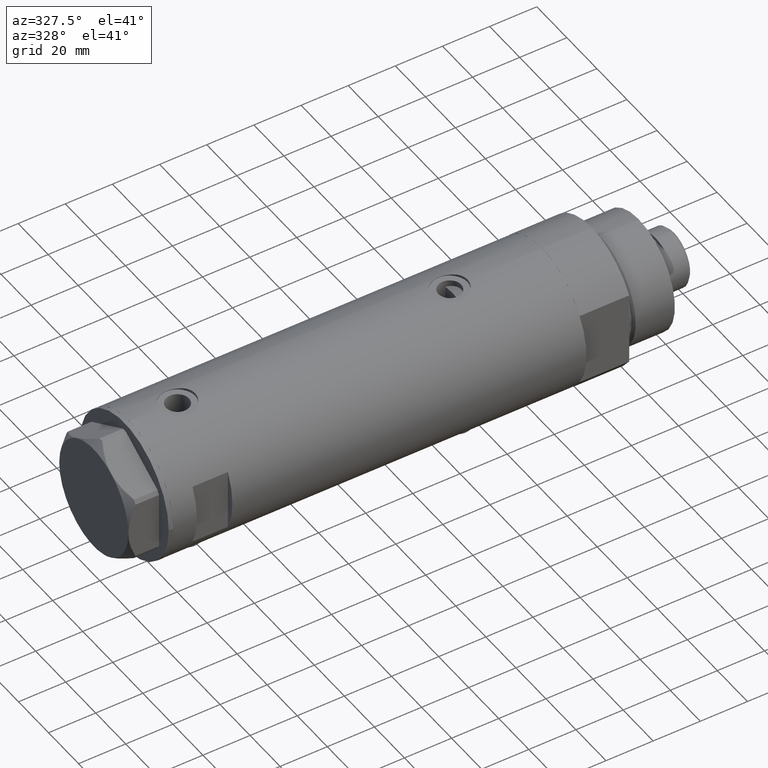
[diagram: clean part render]
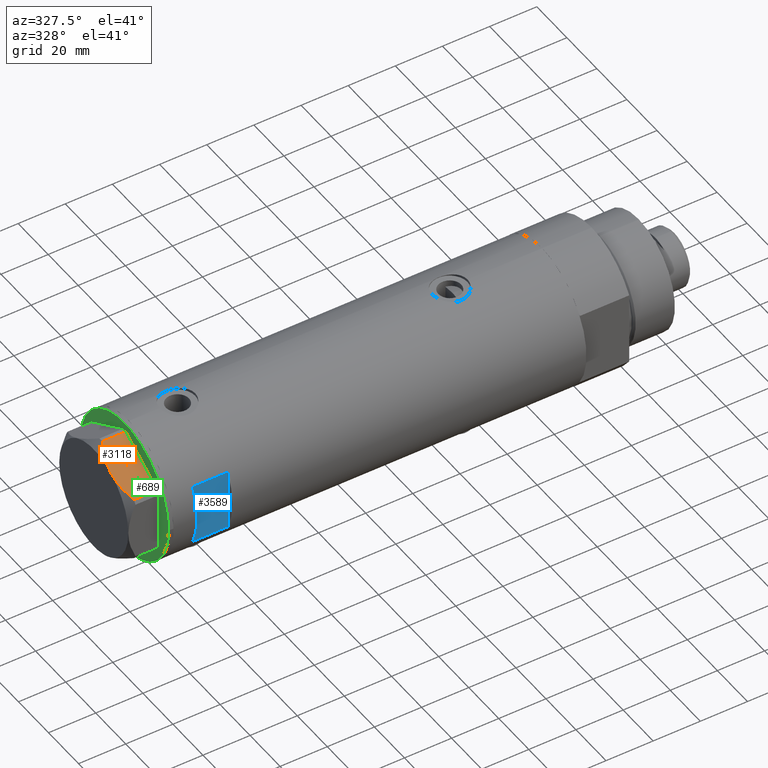
[diagram: same view with three faces highlighted in distinct colors, each labeled with its STEP entity id]
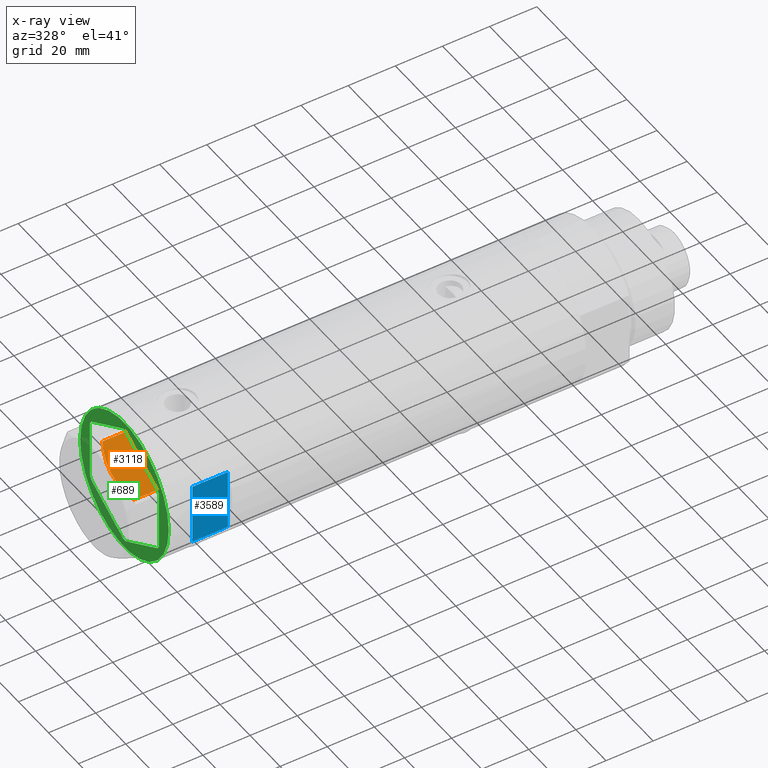
[diagram: x-ray of the same camera — body ghosted, the three highlighted faces saturated]
A machine part, auxiliary view with three faces highlighted in distinct colors.
The next image is the same camera in x-ray (body ghosted, the three faces saturated) — at least one of them is partly hidden behind the body in this view.
Their STEP definitions:

[orange] entity #3118 — the highlighted planar face has unit normal (-0, 0.5, -0.866).
#182 = CARTESIAN_POINT ( 'NONE',  ( -1.799196345396643304, -25.51934588838291162, 10.43131750950939640 ) ) ;
#201 = CARTESIAN_POINT ( 'NONE',  ( -9.678244919010003500, -20.97037507344916563, 13.00000000000009237 ) ) ;
#215 = CARTESIAN_POINT ( 'NONE',  ( -16.05322244309625290, -17.28978008384019915, 12.42689993760378542 ) ) ;
#270 = CARTESIAN_POINT ( 'NONE',  ( -2.640413878806567638, -25.03366871902166935, 10.84420102443839262 ) ) ;
#316 = CARTESIAN_POINT ( 'NONE',  ( -22.03005154776132102, -13.83905619136147536, 13.00000000000000000 ) ) ;
#323 = CARTESIAN_POINT ( 'NONE',  ( -22.99999999999990408, -13.27905619136147841, 0.000000000000000000 ) ) ;
#343 = ORIENTED_EDGE ( 'NONE', *, *, #1507, .T. ) ;
#440 = VERTEX_POINT ( 'NONE', #2697 ) ;
#441 = DIRECTION ( 'NONE',  ( 0.000000000000000000, 0.000000000000000000, 1.000000000000000000 ) ) ;
#642 = CARTESIAN_POINT ( 'NONE',  ( -4.357207709415887642, -24.04247733877630466, 11.57055225522972819 ) ) ;
#657 = EDGE_CURVE ( 'NONE', #2319, #4105, #1251, .T. ) ;
#894 = VECTOR ( 'NONE', #1303, 1000.000000000000000 ) ;
#933 = EDGE_CURVE ( 'NONE', #2319, #1058, #2778, .T. ) ;
#977 = CARTESIAN_POINT ( 'NONE',  ( -0.9699484522383853280, -25.99811238272275205, 9.983800287807632401 ) ) ;
#1009 = CARTESIAN_POINT ( 'NONE',  ( -13.80210138309694479, -18.58946543380922378, 12.85271263895580418 ) ) ;
#1027 = EDGE_LOOP ( 'NONE', ( #4180, #4198, #1031, #343, #1066 ) ) ;
#1031 = ORIENTED_EDGE ( 'NONE', *, *, #1381, .T. ) ;
#1058 = VERTEX_POINT ( 'NONE', #2910 ) ;
#1066 = ORIENTED_EDGE ( 'NONE', *, *, #3388, .F. ) ;
#1238 = CARTESIAN_POINT ( 'NONE',  ( -18.67981377008999644, -15.77331687414923422, 11.62937486882610827 ) ) ;
#1251 = LINE ( 'NONE', #316, #894 ) ;
#1303 = DIRECTION ( 'NONE',  ( -0.000000000000000000, 0.000000000000000000, -1.000000000000000000 ) ) ;
#1320 = CARTESIAN_POINT ( 'NONE',  ( -5.671686373602661035, -23.28356272816404271, 12.04068176582933702 ) ) ;
#1358 = CARTESIAN_POINT ( 'NONE',  ( -15.16323225988328893, -17.80361615569431777, 12.63731396715695077 ) ) ;
#1381 = EDGE_CURVE ( 'NONE', #4105, #440, #2385, .T. ) ;
#1507 = EDGE_CURVE ( 'NONE', #440, #3889, #3013, .T. ) ;
#1586 = CARTESIAN_POINT ( 'NONE',  ( -7.884645426989515649, -22.00591022298554833, 12.70765172847701052 ) ) ;
#1663 = DIRECTION ( 'NONE',  ( 0.4999999999999950040, 0.8660254037844415942, -0.000000000000000000 ) ) ;
#1687 = DIRECTION ( 'NONE',  ( -0.8660254037844415942, 0.4999999999999950040, 0.000000000000000000 ) ) ;
#1714 = FACE_OUTER_BOUND ( 'NONE', #1027, .T. ) ;
#1992 = DIRECTION ( 'NONE',  ( 0.8660254037844415942, -0.4999999999999950595, 0.000000000000000000 ) ) ;
#2269 = VECTOR ( 'NONE', #1992, 1000.000000000000000 ) ;
#2319 = VERTEX_POINT ( 'NONE', #2593 ) ;
#2385 = LINE ( 'NONE', #323, #2269 ) ;
#2502 = CARTESIAN_POINT ( 'NONE',  ( -11.49999999999990585, -19.91858428704219364, 13.00000000000000000 ) ) ;
#2593 = CARTESIAN_POINT ( 'NONE',  ( -22.03005154776146313, -13.83905619136139364, 9.983800287807548912 ) ) ;
#2633 = CARTESIAN_POINT ( 'NONE',  ( -22.03005154776146313, -13.83905619136139364, 9.983800287807548912 ) ) ;
#2697 = CARTESIAN_POINT ( 'NONE',  ( -0.9699484522383873264, -25.99811238272275205, 0.000000000000000000 ) ) ;
#2778 = B_SPLINE_CURVE_WITH_KNOTS ( 'NONE', 3,
 ( #2633, #3705, #1238, #215, #1358, #1009, #2890, #3526, #4259, #2502 ),
 .UNSPECIFIED., .F., .F.,
 ( 4, 2, 2, 2, 4 ),
 ( 0.001228959670438515206, 0.007497079744270818830, 0.01063113978118697053, 0.01219816979964504639, 0.01376519981810312224 ),
 .UNSPECIFIED. ) ;
#2816 = CARTESIAN_POINT ( 'NONE',  ( -22.03005154776132102, -13.83905619136147536, 0.000000000000000000 ) ) ;
#2856 = AXIS2_PLACEMENT_3D ( 'NONE', #3386, #1663, #1687 ) ;
#2890 = CARTESIAN_POINT ( 'NONE',  ( -13.34348161667001698, -18.85424967941148822, 12.90784227772843806 ) ) ;
#2910 = CARTESIAN_POINT ( 'NONE',  ( -11.49999999999990585, -19.91858428704219364, 13.00000000000000000 ) ) ;
#2943 = CARTESIAN_POINT ( 'NONE',  ( -5.229981517797923196, -23.53858114556527781, 11.89212886775844602 ) ) ;
#3013 = LINE ( 'NONE', #4391, #3065 ) ;
#3065 = VECTOR ( 'NONE', #441, 1000.000000000000000 ) ;
#3118 = ADVANCED_FACE ( 'NONE', ( #1714 ), #3737, .F. ) ;
#3386 = CARTESIAN_POINT ( 'NONE',  ( -22.99999999999990408, -13.27905619136147841, 13.00000000000000000 ) ) ;
#3388 = EDGE_CURVE ( 'NONE', #1058, #3889, #3749, .T. ) ;
#3511 = CARTESIAN_POINT ( 'NONE',  ( -0.9699484522383853280, -25.99811238272275205, 9.983800287807632401 ) ) ;
#3526 = CARTESIAN_POINT ( 'NONE',  ( -12.41906678023023325, -19.38796083407287085, 12.98168640760950865 ) ) ;
#3705 = CARTESIAN_POINT ( 'NONE',  ( -20.37350567916426058, -14.79546339452093662, 10.87778242614345992 ) ) ;
#3716 = CARTESIAN_POINT ( 'NONE',  ( -11.49999999999990585, -19.91858428704219364, 13.00000000000000000 ) ) ;
#3737 = PLANE ( 'NONE',  #2856 ) ;
#3749 = B_SPLINE_CURVE_WITH_KNOTS ( 'NONE', 3,
 ( #3716, #201, #1586, #1320, #2943, #642, #4358, #270, #182, #977 ),
 .UNSPECIFIED., .F., .F.,
 ( 4, 2, 2, 2, 4 ),
 ( 0.01376519981810312224, 0.01998941321701588891, 0.02154546656674407451, 0.02310151991647226705, 0.02621362661592864171 ),
 .UNSPECIFIED. ) ;
#3889 = VERTEX_POINT ( 'NONE', #3511 ) ;
#4105 = VERTEX_POINT ( 'NONE', #2816 ) ;
#4180 = ORIENTED_EDGE ( 'NONE', *, *, #933, .F. ) ;
#4198 = ORIENTED_EDGE ( 'NONE', *, *, #657, .T. ) ;
#4259 = CARTESIAN_POINT ( 'NONE',  ( -11.95865151389046588, -19.65378171203314395, 13.00000000000009948 ) ) ;
#4358 = CARTESIAN_POINT ( 'NONE',  ( -3.925137811029895563, -24.29193301091818213, 11.39727285399141365 ) ) ;
#4391 = CARTESIAN_POINT ( 'NONE',  ( -0.9699484522383907681, -25.99811238272274494, 13.00000000000000000 ) ) ;

[blue] entity #3589 — the highlighted planar face has unit normal (-0, 1, 0).
#51 = EDGE_CURVE ( 'NONE', #3765, #1134, #477, .T. ) ;
#114 = AXIS2_PLACEMENT_3D ( 'NONE', #3574, #2216, #4285 ) ;
#235 = VECTOR ( 'NONE', #2536, 1000.000000000000000 ) ;
#242 = EDGE_CURVE ( 'NONE', #4257, #3765, #1689, .T. ) ;
#361 = EDGE_LOOP ( 'NONE', ( #4330, #372, #1617, #3370 ) ) ;
#372 = ORIENTED_EDGE ( 'NONE', *, *, #242, .T. ) ;
#477 = LINE ( 'NONE', #2517, #235 ) ;
#573 = CARTESIAN_POINT ( 'NONE',  ( 12.96148139681573319, -26.49999999999998934, 62.59999999999998721 ) ) ;
#575 = CARTESIAN_POINT ( 'NONE',  ( -12.96148139681573319, -26.49999999999998934, 77.60000000000002274 ) ) ;
#744 = DIRECTION ( 'NONE',  ( -0.000000000000000000, -0.000000000000000000, -1.000000000000000000 ) ) ;
#786 = FACE_OUTER_BOUND ( 'NONE', #361, .T. ) ;
#1134 = VERTEX_POINT ( 'NONE', #1148 ) ;
#1148 = CARTESIAN_POINT ( 'NONE',  ( 12.96148139681573319, -26.49999999999998934, 77.60000000000002274 ) ) ;
#1196 = VERTEX_POINT ( 'NONE', #575 ) ;
#1270 = DIRECTION ( 'NONE',  ( 1.000000000000000000, -0.000000000000000000, -0.000000000000000000 ) ) ;
#1617 = ORIENTED_EDGE ( 'NONE', *, *, #51, .T. ) ;
#1643 = CARTESIAN_POINT ( 'NONE',  ( -29.50000000000000355, -26.50000000000000355, 77.60000000000002274 ) ) ;
#1689 = LINE ( 'NONE', #3075, #1754 ) ;
#1754 = VECTOR ( 'NONE', #2739, 1000.000000000000000 ) ;
#1822 = PLANE ( 'NONE',  #114 ) ;
#1883 = EDGE_CURVE ( 'NONE', #1196, #4257, #3866, .T. ) ;
#2201 = VECTOR ( 'NONE', #744, 1000.000000000000000 ) ;
#2216 = DIRECTION ( 'NONE',  ( 0.000000000000000000, 1.000000000000000000, 0.000000000000000000 ) ) ;
#2317 = EDGE_CURVE ( 'NONE', #1196, #1134, #2956, .T. ) ;
#2345 = VECTOR ( 'NONE', #1270, 1000.000000000000000 ) ;
#2458 = CARTESIAN_POINT ( 'NONE',  ( -12.96148139681573319, -26.49999999999999645, -87.59999999999999432 ) ) ;
#2517 = CARTESIAN_POINT ( 'NONE',  ( 12.96148139681573319, -26.49999999999999645, -87.59999999999999432 ) ) ;
#2536 = DIRECTION ( 'NONE',  ( 0.000000000000000000, 0.000000000000000000, 1.000000000000000000 ) ) ;
#2538 = CARTESIAN_POINT ( 'NONE',  ( -12.96148139681573319, -26.49999999999998934, 62.59999999999998721 ) ) ;
#2739 = DIRECTION ( 'NONE',  ( 1.000000000000000000, -0.000000000000000000, -0.000000000000000000 ) ) ;
#2956 = LINE ( 'NONE', #1643, #2345 ) ;
#3075 = CARTESIAN_POINT ( 'NONE',  ( -29.50000000000000355, -26.50000000000000355, 62.60000000000001563 ) ) ;
#3370 = ORIENTED_EDGE ( 'NONE', *, *, #2317, .F. ) ;
#3574 = CARTESIAN_POINT ( 'NONE',  ( -29.50000000000000355, -26.50000000000000355, 77.60000000000002274 ) ) ;
#3589 = ADVANCED_FACE ( 'NONE', ( #786 ), #1822, .F. ) ;
#3765 = VERTEX_POINT ( 'NONE', #573 ) ;
#3866 = LINE ( 'NONE', #2458, #2201 ) ;
#4257 = VERTEX_POINT ( 'NONE', #2538 ) ;
#4285 = DIRECTION ( 'NONE',  ( 0.000000000000000000, -0.000000000000000000, 1.000000000000000000 ) ) ;
#4330 = ORIENTED_EDGE ( 'NONE', *, *, #1883, .T. ) ;

[green] entity #689 — the highlighted planar face has unit normal (1, 0, -0).
#4 = CARTESIAN_POINT ( 'NONE',  ( -22.99999999999990763, -12.15905619136148985, 0.000000000000000000 ) ) ;
#69 = EDGE_LOOP ( 'NONE', ( #416, #2814 ) ) ;
#86 = VERTEX_POINT ( 'NONE', #1716 ) ;
#88 = CARTESIAN_POINT ( 'NONE',  ( 22.99999999999981171, 13.27905619136164184, 0.000000000000000000 ) ) ;
#125 = ORIENTED_EDGE ( 'NONE', *, *, #3284, .T. ) ;
#191 = CARTESIAN_POINT ( 'NONE',  ( 23.00000000000007461, -12.15905619136117721, 0.000000000000000000 ) ) ;
#227 = DIRECTION ( 'NONE',  ( 0.000000000000000000, 0.000000000000000000, -1.000000000000000000 ) ) ;
#237 = EDGE_CURVE ( 'NONE', #3111, #4315, #3707, .T. ) ;
#246 = VERTEX_POINT ( 'NONE', #4118 ) ;
#250 = VECTOR ( 'NONE', #3360, 1000.000000000000000 ) ;
#306 = DIRECTION ( 'NONE',  ( -1.000000000000000000, 0.000000000000000000, 0.000000000000000000 ) ) ;
#323 = CARTESIAN_POINT ( 'NONE',  ( -22.99999999999990408, -13.27905619136147841, 0.000000000000000000 ) ) ;
#352 = VERTEX_POINT ( 'NONE', #191 ) ;
#384 = DIRECTION ( 'NONE',  ( 0.8660254037844345998, 0.5000000000000069944, 0.000000000000000000 ) ) ;
#414 = ORIENTED_EDGE ( 'NONE', *, *, #2315, .T. ) ;
#416 = ORIENTED_EDGE ( 'NONE', *, *, #237, .F. ) ;
#440 = VERTEX_POINT ( 'NONE', #2697 ) ;
#449 = ORIENTED_EDGE ( 'NONE', *, *, #854, .T. ) ;
#513 = CARTESIAN_POINT ( 'NONE',  ( 0.9699484522385886098, 25.99811238272273783, 0.000000000000000000 ) ) ;
#579 = VERTEX_POINT ( 'NONE', #4 ) ;
#590 = DIRECTION ( 'NONE',  ( -1.000000000000000000, 0.000000000000000000, -0.000000000000000000 ) ) ;
#600 = LINE ( 'NONE', #1263, #1838 ) ;
#602 = EDGE_CURVE ( 'NONE', #352, #86, #1954, .T. ) ;
#680 = VECTOR ( 'NONE', #1224, 1000.000000000000000 ) ;
#689 = ADVANCED_FACE ( 'NONE', ( #2620, #3029 ), #4073, .F. ) ;
#765 = VECTOR ( 'NONE', #1290, 1000.000000000000000 ) ;
#823 = VERTEX_POINT ( 'NONE', #513 ) ;
#836 = CARTESIAN_POINT ( 'NONE',  ( 22.99999999999982236, 12.15905619136166571, 0.000000000000000000 ) ) ;
#854 = EDGE_CURVE ( 'NONE', #246, #823, #2882, .T. ) ;
#902 = VECTOR ( 'NONE', #384, 999.9999999999998863 ) ;
#908 = VECTOR ( 'NONE', #2215, 1000.000000000000000 ) ;
#946 = DIRECTION ( 'NONE',  ( 3.527173405730720141E-15, -1.000000000000000000, 0.000000000000000000 ) ) ;
#957 = CARTESIAN_POINT ( 'NONE',  ( 0.000000000000000000, 0.000000000000000000, 0.000000000000000000 ) ) ;
#1040 = VECTOR ( 'NONE', #4322, 1000.000000000000227 ) ;
#1070 = EDGE_LOOP ( 'NONE', ( #3400, #414, #3912, #1565, #3410, #125, #3168, #2825, #1092, #2566, #1376, #449 ) ) ;
#1092 = ORIENTED_EDGE ( 'NONE', *, *, #2669, .F. ) ;
#1122 = VECTOR ( 'NONE', #4348, 999.9999999999998863 ) ;
#1224 = DIRECTION ( 'NONE',  ( 1.000000000000000000, 3.576939520802682722E-15, -0.000000000000000000 ) ) ;
#1263 = CARTESIAN_POINT ( 'NONE',  ( 0.000000000000000000, 26.55811238272274366, 0.000000000000000000 ) ) ;
#1290 = DIRECTION ( 'NONE',  ( -1.000000000000000000, -7.153879041605523216E-15, -0.000000000000000000 ) ) ;
#1291 = CARTESIAN_POINT ( 'NONE',  ( -22.99999999999999645, 13.27905619136132032, 0.000000000000000000 ) ) ;
#1369 = CARTESIAN_POINT ( 'NONE',  ( 23.00000000000008527, -13.27905619136115867, 0.000000000000000000 ) ) ;
#1376 = ORIENTED_EDGE ( 'NONE', *, *, #2793, .F. ) ;
#1381 = EDGE_CURVE ( 'NONE', #4105, #440, #2385, .T. ) ;
#1503 = VERTEX_POINT ( 'NONE', #1636 ) ;
#1565 = ORIENTED_EDGE ( 'NONE', *, *, #602, .T. ) ;
#1576 = LINE ( 'NONE', #2950, #1040 ) ;
#1636 = CARTESIAN_POINT ( 'NONE',  ( 22.03005154776124996, 13.83905619136162635, 0.000000000000000000 ) ) ;
#1652 = EDGE_CURVE ( 'NONE', #2685, #86, #4142, .T. ) ;
#1716 = CARTESIAN_POINT ( 'NONE',  ( 22.03005154776153773, -13.83905619136115561, 0.000000000000000000 ) ) ;
#1733 = EDGE_CURVE ( 'NONE', #1503, #823, #2531, .T. ) ;
#1838 = VECTOR ( 'NONE', #2632, 1000.000000000000227 ) ;
#1944 = CARTESIAN_POINT ( 'NONE',  ( 0.9699484522387533669, -25.99811238272273428, 0.000000000000000000 ) ) ;
#1954 = LINE ( 'NONE', #3050, #2775 ) ;
#1992 = DIRECTION ( 'NONE',  ( 0.8660254037844415942, -0.4999999999999950595, 0.000000000000000000 ) ) ;
#2002 = EDGE_CURVE ( 'NONE', #4105, #579, #3431, .T. ) ;
#2023 = CARTESIAN_POINT ( 'NONE',  ( 0.000000000000000000, 0.000000000000000000, 0.000000000000000000 ) ) ;
#2091 = EDGE_CURVE ( 'NONE', #352, #2644, #4451, .T. ) ;
#2166 = VERTEX_POINT ( 'NONE', #4251 ) ;
#2215 = DIRECTION ( 'NONE',  ( -1.032024811306395780E-14, 1.000000000000000000, 0.000000000000000000 ) ) ;
#2256 = AXIS2_PLACEMENT_3D ( 'NONE', #2023, #3407, #306 ) ;
#2269 = VECTOR ( 'NONE', #1992, 1000.000000000000000 ) ;
#2310 = DIRECTION ( 'NONE',  ( -1.000000000000000000, 0.000000000000000000, 0.000000000000000000 ) ) ;
#2315 = EDGE_CURVE ( 'NONE', #1503, #2644, #2977, .T. ) ;
#2331 = AXIS2_PLACEMENT_3D ( 'NONE', #3691, #2357, #590 ) ;
#2357 = DIRECTION ( 'NONE',  ( 0.000000000000000000, 0.000000000000000000, -1.000000000000000000 ) ) ;
#2385 = LINE ( 'NONE', #323, #2269 ) ;
#2531 = LINE ( 'NONE', #88, #2561 ) ;
#2561 = VECTOR ( 'NONE', #2855, 999.9999999999998863 ) ;
#2566 = ORIENTED_EDGE ( 'NONE', *, *, #3309, .T. ) ;
#2568 = AXIS2_PLACEMENT_3D ( 'NONE', #957, #227, #2310 ) ;
#2620 = FACE_BOUND ( 'NONE', #1070, .T. ) ;
#2632 = DIRECTION ( 'NONE',  ( -0.8660254037844380415, -0.5000000000000008882, 0.000000000000000000 ) ) ;
#2644 = VERTEX_POINT ( 'NONE', #836 ) ;
#2669 = EDGE_CURVE ( 'NONE', #3719, #579, #2827, .T. ) ;
#2685 = VERTEX_POINT ( 'NONE', #1944 ) ;
#2697 = CARTESIAN_POINT ( 'NONE',  ( -0.9699484522383873264, -25.99811238272275205, 0.000000000000000000 ) ) ;
#2775 = VECTOR ( 'NONE', #4334, 1000.000000000000000 ) ;
#2793 = EDGE_CURVE ( 'NONE', #246, #2166, #600, .T. ) ;
#2814 = ORIENTED_EDGE ( 'NONE', *, *, #3972, .F. ) ;
#2816 = CARTESIAN_POINT ( 'NONE',  ( -22.03005154776132102, -13.83905619136147536, 0.000000000000000000 ) ) ;
#2825 = ORIENTED_EDGE ( 'NONE', *, *, #2002, .T. ) ;
#2827 = LINE ( 'NONE', #1291, #4163 ) ;
#2855 = DIRECTION ( 'NONE',  ( -0.8660254037844415942, 0.4999999999999949485, 0.000000000000000000 ) ) ;
#2882 = LINE ( 'NONE', #4265, #680 ) ;
#2933 = CARTESIAN_POINT ( 'NONE',  ( 1.859873512960652550E-13, -25.99811238272274139, 0.000000000000000000 ) ) ;
#2939 = CARTESIAN_POINT ( 'NONE',  ( -22.99999999999999289, 12.15905619136131754, 0.000000000000000000 ) ) ;
#2950 = CARTESIAN_POINT ( 'NONE',  ( -22.51502577388069781, 12.99905619136134050, 0.000000000000000000 ) ) ;
#2977 = LINE ( 'NONE', #4042, #1122 ) ;
#3029 = FACE_OUTER_BOUND ( 'NONE', #69, .T. ) ;
#3050 = CARTESIAN_POINT ( 'NONE',  ( 22.51502577388080795, -12.99905619136115398, 0.000000000000000000 ) ) ;
#3111 = VERTEX_POINT ( 'NONE', #3366 ) ;
#3168 = ORIENTED_EDGE ( 'NONE', *, *, #1381, .F. ) ;
#3247 = LINE ( 'NONE', #2933, #765 ) ;
#3284 = EDGE_CURVE ( 'NONE', #2685, #440, #3247, .T. ) ;
#3309 = EDGE_CURVE ( 'NONE', #3719, #2166, #1576, .T. ) ;
#3360 = DIRECTION ( 'NONE',  ( -0.5000000000000086597, 0.8660254037844337116, -0.000000000000000000 ) ) ;
#3366 = CARTESIAN_POINT ( 'NONE',  ( 29.50000000000000355, 0.000000000000000000, 0.000000000000000000 ) ) ;
#3400 = ORIENTED_EDGE ( 'NONE', *, *, #1733, .F. ) ;
#3407 = DIRECTION ( 'NONE',  ( 0.000000000000000000, 0.000000000000000000, -1.000000000000000000 ) ) ;
#3410 = ORIENTED_EDGE ( 'NONE', *, *, #1652, .F. ) ;
#3431 = LINE ( 'NONE', #3702, #250 ) ;
#3486 = CARTESIAN_POINT ( 'NONE',  ( 1.854543075583504180E-13, -26.55811238272274366, 0.000000000000000000 ) ) ;
#3578 = CIRCLE ( 'NONE', #2568, 29.50000000000000355 ) ;
#3691 = CARTESIAN_POINT ( 'NONE',  ( 0.000000000000000000, 0.000000000000000000, 0.000000000000000000 ) ) ;
#3702 = CARTESIAN_POINT ( 'NONE',  ( -22.51502577388055215, -12.99905619136159629, 0.000000000000000000 ) ) ;
#3707 = CIRCLE ( 'NONE', #2256, 29.50000000000000355 ) ;
#3719 = VERTEX_POINT ( 'NONE', #2939 ) ;
#3912 = ORIENTED_EDGE ( 'NONE', *, *, #2091, .F. ) ;
#3972 = EDGE_CURVE ( 'NONE', #4315, #3111, #3578, .T. ) ;
#4042 = CARTESIAN_POINT ( 'NONE',  ( 22.51502577388055926, 12.99905619136160162, 0.000000000000000000 ) ) ;
#4073 = PLANE ( 'NONE',  #2331 ) ;
#4105 = VERTEX_POINT ( 'NONE', #2816 ) ;
#4118 = CARTESIAN_POINT ( 'NONE',  ( -0.9699484522385893870, 25.99811238272273073, 0.000000000000000000 ) ) ;
#4142 = LINE ( 'NONE', #3486, #902 ) ;
#4163 = VECTOR ( 'NONE', #946, 1000.000000000000000 ) ;
#4251 = CARTESIAN_POINT ( 'NONE',  ( -22.03005154776141339, 13.83905619136132792, 0.000000000000000000 ) ) ;
#4265 = CARTESIAN_POINT ( 'NONE',  ( -9.299367564803055752E-14, 25.99811238272273428, 0.000000000000000000 ) ) ;
#4315 = VERTEX_POINT ( 'NONE', #4383 ) ;
#4322 = DIRECTION ( 'NONE',  ( 0.4999999999999986677, 0.8660254037844392627, -0.000000000000000000 ) ) ;
#4334 = DIRECTION ( 'NONE',  ( -0.4999999999999915623, -0.8660254037844434816, -0.000000000000000000 ) ) ;
#4348 = DIRECTION ( 'NONE',  ( 0.5000000000000086597, -0.8660254037844337116, -0.000000000000000000 ) ) ;
#4383 = CARTESIAN_POINT ( 'NONE',  ( -29.50000000000000355, 3.612708057484692393E-15, 0.000000000000000000 ) ) ;
#4451 = LINE ( 'NONE', #1369, #908 ) ;